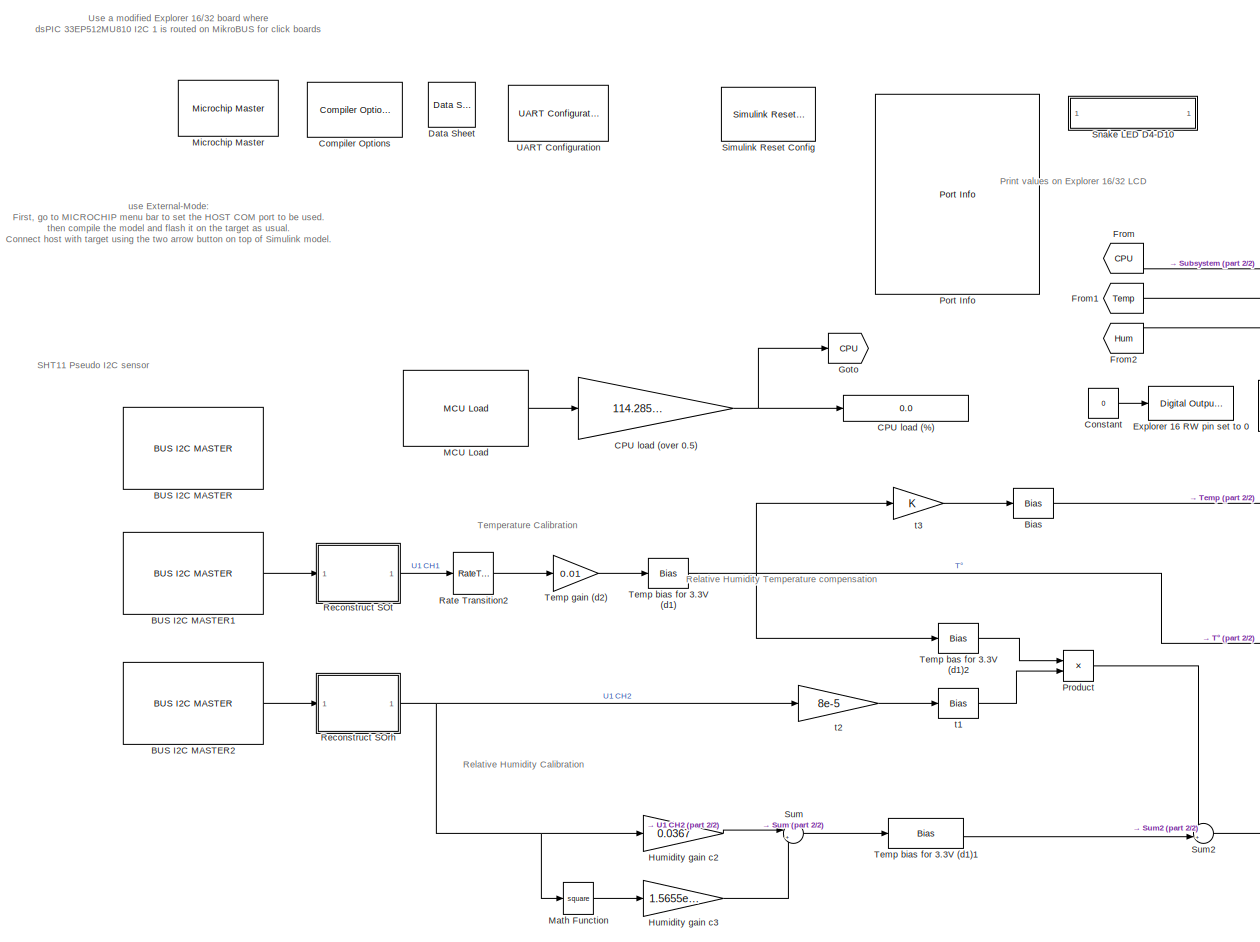
[diagram: root canvas - part 1/2, left side, full height]
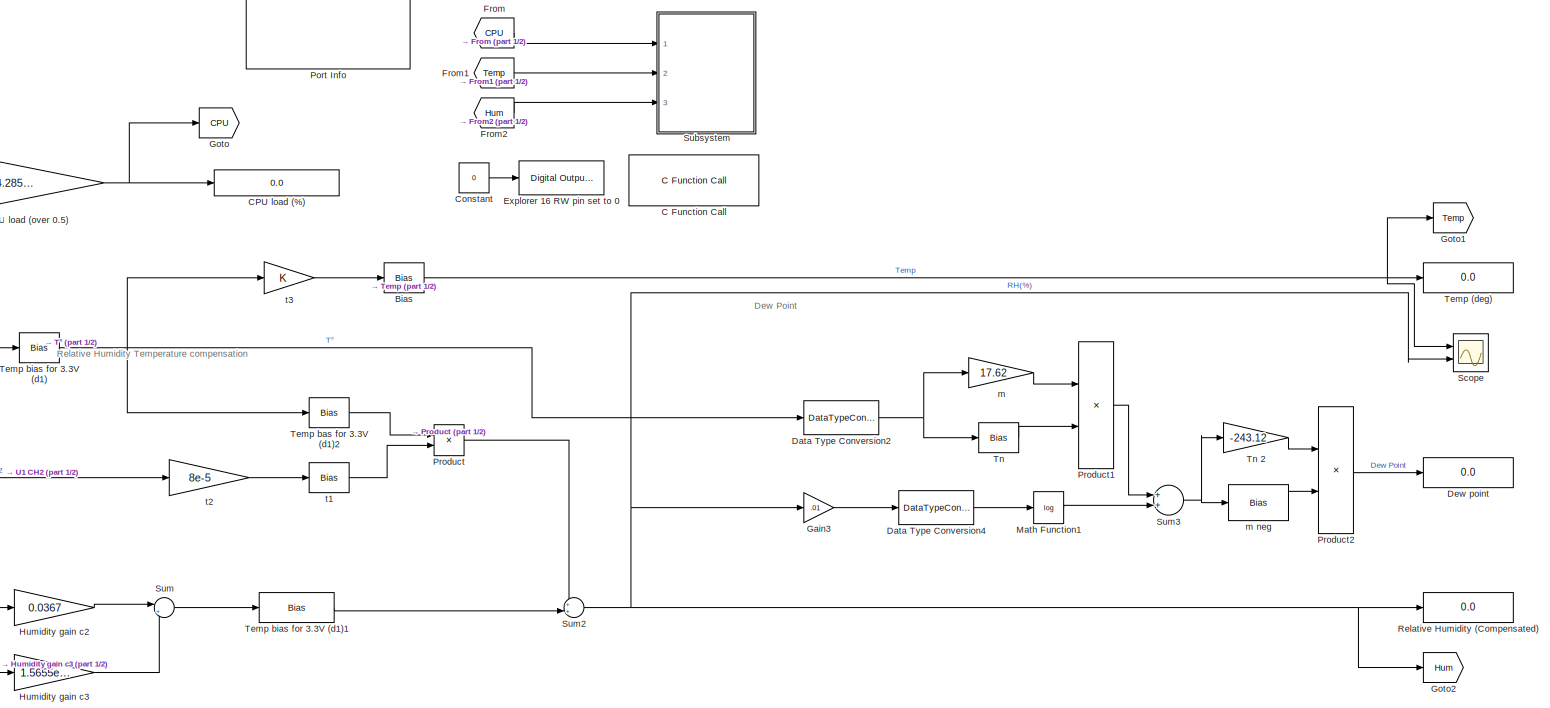
[diagram: root canvas - part 2/2, central region]
MODEL slx_b0462b158aa4
KIND model
CONFIG AbsTol = auto
CONFIG FixedStep = 0.01
CONFIG MaxStep = auto
CONFIG MinStep = auto
CONFIG RelTol = 1e-3
CONFIG SampleTimeConstraint = Unconstrained
CONFIG Solver = FixedStepDiscrete
CONFIG SolverMode = SingleTasking
CONFIG SolverName = FixedStepDiscrete
CONFIG StartTime = 0.0
CONFIG StopTime = inf
BLOCK [Reference] BUS I2C MASTER  REF=MCHP_Blockset/BUS I2C/BUS I2C
MASTER
  Ports = []
  SourceBlock = MCHP_Blockset/BUS I2C/BUS I2C\nMASTER
  SourceType = I2C Driver
BLOCK [Reference] BUS I2C MASTER1  REF=MCHP_Blockset/BUS I2C/BUS I2C
MASTER
  Ports = [0, 1]
  SourceBlock = MCHP_Blockset/BUS I2C/BUS I2C\nMASTER
  SourceType = I2C Driver
BLOCK [Reference] BUS I2C MASTER2  REF=MCHP_Blockset/BUS I2C/BUS I2C
MASTER
  Ports = [0, 1]
  SourceBlock = MCHP_Blockset/BUS I2C/BUS I2C\nMASTER
  SourceType = I2C Driver
BLOCK [Bias] Bias
  SaturateOnIntegerOverflow = off
BLOCK [Reference] C Function Call  REF=MCHP_Blockset/User Functions/C Function Call
  Ports = []
  SourceBlock = MCHP_Blockset/User Functions/C Function Call
  SourceType = C Function Call
  UserDataPersistent = on
BLOCK [Display] CPU load (%)
  Decimation = 1
  Format = long
  Ports = [1]
BLOCK [Gain] CPU load (over 0.5)
  Gain = 114.2857143e-9 / 0.5 * 100
  OutDataTypeStr = Inherit: Inherit via internal rule
  ParamDataTypeStr = Inherit: Inherit via internal rule
  SaturateOnIntegerOverflow = off
BLOCK [Reference] Compiler Options  REF=MCHP_Blockset/System Configuration/Compiler Options
  Ports = []
  Priority = 1
  SourceBlock = MCHP_Blockset/System Configuration/Compiler Options
BLOCK [Constant] Constant
  OutDataTypeStr = Inherit: Inherit via back propagation
  Value = 0
BLOCK [Reference] Data Sheet  REF=MCHP_Blockset/System Info/Data Sheet
  AttributesFormatString = %<cpy_MCHP_Id>
  Ports = []
  SourceBlock = MCHP_Blockset/System Info/Data Sheet
BLOCK [DataTypeConversion] Data Type Conversion2
  OutDataTypeStr = double
  RndMeth = Floor
  SaturateOnIntegerOverflow = off
BLOCK [DataTypeConversion] Data Type Conversion4
  OutDataTypeStr = double
  RndMeth = Floor
  SaturateOnIntegerOverflow = off
BLOCK [Display] Dew point
  Decimation = 1
  Format = long
  Ports = [1]
BLOCK [Reference] Explorer 16 RW pin set to 0  REF=MCHP_Blockset/Digital IO/Digital Output
Write
  Ports = [1]
  SourceBlock = MCHP_Blockset/Digital IO/Digital Output\nWrite
  SourceType = Output driver for Digital Output Pins
BLOCK [From] From
  GotoTag = CPU
BLOCK [From] From1
  GotoTag = Temp
BLOCK [From] From2
  GotoTag = Hum
BLOCK [Gain] Gain3
  Gain = .01
  OutDataTypeStr = fixdt(1,32)
  OutMax = [1]
  OutMin = [0]
  ParamDataTypeStr = Inherit: Inherit via internal rule
  SaturateOnIntegerOverflow = off
BLOCK [Goto] Goto
  GotoTag = CPU
BLOCK [Goto] Goto1
  GotoTag = Temp
BLOCK [Goto] Goto2
  GotoTag = Hum
BLOCK [Gain] Humidity gain c2
  Gain = 0.0367
  OutDataTypeStr = fixdt(1,32)
  OutMax = 2^16*0.0367
  ParamDataTypeStr = Inherit: Inherit via internal rule
  SaturateOnIntegerOverflow = off
BLOCK [Gain] Humidity gain c3
  Gain = 1.5655e-6
  OutDataTypeStr = fixdt(0,32)
  OutMax = 2^32*1.5655e-6
  ParamDataTypeStr = Inherit: Inherit via internal rule
  SaturateOnIntegerOverflow = off
BLOCK [Reference] MCU Load  REF=MCHP_Blockset/Profiling/MCU Load
  Ports = [0, 1]
  SourceBlock = MCHP_Blockset/Profiling/MCU Load
  SourceType = MCU Load (Profile execution time)
BLOCK [Math] Math Function
  Operator = square
  OutDataTypeStr = Inherit: Inherit via internal rule
  Ports = [1, 1]
  SaturateOnIntegerOverflow = off
BLOCK [Math] Math Function1
  Operator = log
  OutDataTypeStr = Inherit: Inherit via internal rule
  Ports = [1, 1]
  SaturateOnIntegerOverflow = off
BLOCK [Reference] Microchip Master  REF=MCHP_Blockset/System Configuration/Microchip Master
  Ports = []
  Priority = 1
  SourceBlock = MCHP_Blockset/System Configuration/Microchip Master
BLOCK [Reference] Port Info  REF=MCHP_Blockset/System Info/Port Info
  Ports = []
  SourceBlock = MCHP_Blockset/System Info/Port Info
BLOCK [Product] Product
  InputSameDT = off
  OutDataTypeStr = Inherit: Inherit via internal rule
  Ports = [2, 1]
  RndMeth = Floor
  SaturateOnIntegerOverflow = off
BLOCK [Product] Product1
  InputSameDT = off
  Inputs = */
  OutDataTypeStr = Inherit: Inherit via internal rule
  Ports = [2, 1]
  RndMeth = Floor
  SaturateOnIntegerOverflow = off
BLOCK [Product] Product2
  InputSameDT = off
  Inputs = */
  OutDataTypeStr = Inherit: Inherit via internal rule
  Ports = [2, 1]
  RndMeth = Floor
  SaturateOnIntegerOverflow = off
BLOCK [RateTransition] Rate Transition2
  Integrity = off
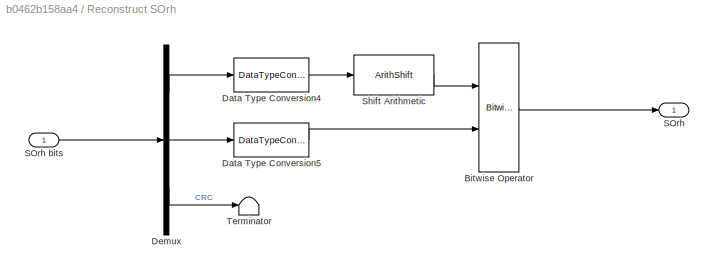
BLOCK [SubSystem] Reconstruct SOrh
  Ports = [1, 1]
  RequestExecContextInheritance = off
  Variant = off
BLOCK [Reference] Reconstruct SOrh/Bitwise Operator  REF=simulink/Logic and Bit
Operations/Bitwise
Operator
  Ports = [2, 1]
  SourceBlock = simulink/Logic and Bit\nOperations/Bitwise\nOperator
  SourceType = Bitwise Operator
BLOCK [DataTypeConversion] Reconstruct SOrh/Data Type Conversion4
  ConvertRealWorld = Stored Integer (SI)
  OutDataTypeStr = uint16
  RndMeth = Floor
  SaturateOnIntegerOverflow = off
BLOCK [DataTypeConversion] Reconstruct SOrh/Data Type Conversion5
  ConvertRealWorld = Stored Integer (SI)
  OutDataTypeStr = uint16
  RndMeth = Floor
  SaturateOnIntegerOverflow = off
BLOCK [Demux] Reconstruct SOrh/Demux
  DisplayOption = bar
  Outputs = 3
  Ports = [1, 3]
BLOCK [Outport] Reconstruct SOrh/SOrh
  IconDisplay = Port number
BLOCK [Inport] Reconstruct SOrh/SOrh bits
  IconDisplay = Port number
BLOCK [ArithShift] Reconstruct SOrh/Shift Arithmetic
  BitShiftDirection = Left
  BitShiftNumber = 8
  InputPortMap = u0
  Ports = [1, 1]
BLOCK [Terminator] Reconstruct SOrh/Terminator
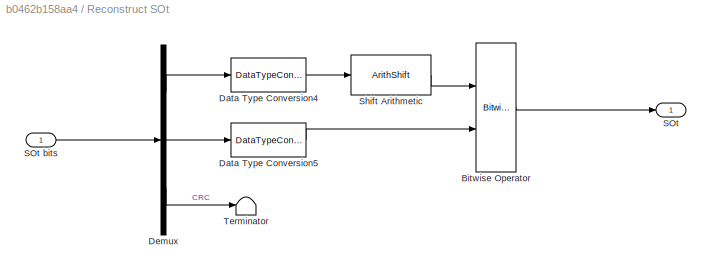
BLOCK [SubSystem] Reconstruct SOt
  Ports = [1, 1]
  RequestExecContextInheritance = off
  Variant = off
BLOCK [Reference] Reconstruct SOt/Bitwise Operator  REF=simulink/Logic and Bit
Operations/Bitwise
Operator
  Ports = [2, 1]
  SourceBlock = simulink/Logic and Bit\nOperations/Bitwise\nOperator
  SourceType = Bitwise Operator
BLOCK [DataTypeConversion] Reconstruct SOt/Data Type Conversion4
  ConvertRealWorld = Stored Integer (SI)
  OutDataTypeStr = uint16
  RndMeth = Floor
  SaturateOnIntegerOverflow = off
BLOCK [DataTypeConversion] Reconstruct SOt/Data Type Conversion5
  ConvertRealWorld = Stored Integer (SI)
  OutDataTypeStr = uint16
  RndMeth = Floor
  SaturateOnIntegerOverflow = off
BLOCK [Demux] Reconstruct SOt/Demux
  DisplayOption = bar
  Outputs = 3
  Ports = [1, 3]
BLOCK [Outport] Reconstruct SOt/SOt
  IconDisplay = Port number
BLOCK [Inport] Reconstruct SOt/SOt bits
  IconDisplay = Port number
BLOCK [ArithShift] Reconstruct SOt/Shift Arithmetic
  BitShiftDirection = Left
  BitShiftNumber = 8
  InputPortMap = u0
  Ports = [1, 1]
BLOCK [Terminator] Reconstruct SOt/Terminator
BLOCK [Display] Relative Humidity (Compensated)
  Decimation = 1
  Format = long
  Ports = [1]
BLOCK [Scope] Scope
  NumInputPorts = 2
  Ports = [2]
  ScopeSpecificationString = Simulink.scopes.TimeScopeBlockCfg('CurrentConfiguration', extmgr.ConfigurationSet(extmgr.Configuration('Core','General UI',true),extmgr.Configuration('Core','Source UI',true),extmgr.Configuration('Sources','WiredSimulink',true),extmgr.Configuration('Visuals','Time Domain',true,'SerializedDisplays',{struct('MinYLimReal','75.92188','MaxYLimReal','76.85938','YLabelReal','','MinYLimMag','75.92188','Ma...<+2170ch>
BLOCK [Reference] Simulink Reset Config  REF=MCHP_Blockset/System Configuration/Simulink Reset
Config
  Ports = []
  SourceBlock = MCHP_Blockset/System Configuration/Simulink Reset\nConfig
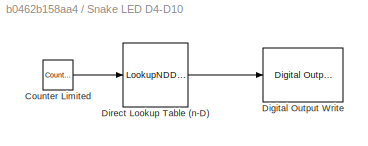
BLOCK [SubSystem] Snake LED D4-D10
  Ports = []
  RequestExecContextInheritance = off
  Variant = off
BLOCK [Reference] Snake LED D4-D10/Counter Limited   REF=simulink/Sources/Counter
Limited
  Ports = [0, 1]
  SourceBlock = simulink/Sources/Counter\nLimited
  SourceType = Counter Limited
BLOCK [Reference] Snake LED D4-D10/Digital Output Write  REF=MCHP_Blockset/Digital IO/Digital Output
Write
  Ports = [1]
  SourceBlock = MCHP_Blockset/Digital IO/Digital Output\nWrite
  SourceType = Output driver for Digital Output Pins
BLOCK [LookupNDDirect] Snake LED D4-D10/Direct Lookup Table (n-D)
  NumberOfTableDimensions = 1
  Ports = [1, 1]
  Table = [ 2 4 8 16 32 64 128 64 32 16 8 4 ]
  TableDataTypeStr = uint16
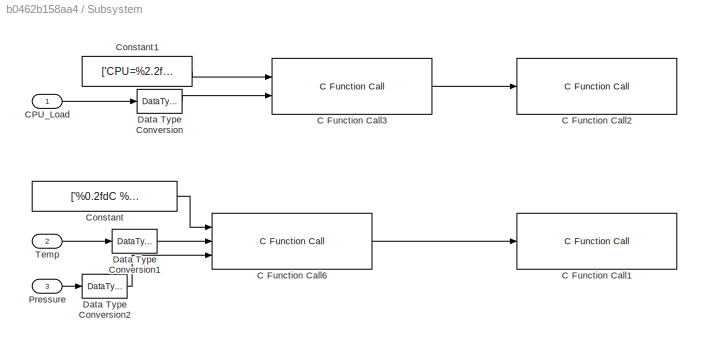
BLOCK [SubSystem] Subsystem
  Ports = [3]
  RequestExecContextInheritance = off
  Variant = off
BLOCK [Reference] Subsystem/C Function Call1  REF=MCHP_Blockset/User Functions/C Function Call
  Ports = [1]
  SourceBlock = MCHP_Blockset/User Functions/C Function Call
  SourceType = C Function Call
  UserDataPersistent = on
BLOCK [Reference] Subsystem/C Function Call2  REF=MCHP_Blockset/User Functions/C Function Call
  Ports = [1]
  SourceBlock = MCHP_Blockset/User Functions/C Function Call
  SourceType = C Function Call
  UserDataPersistent = on
BLOCK [Reference] Subsystem/C Function Call3  REF=MCHP_Blockset/User Functions/C Function Call
  Ports = [2, 1]
  SourceBlock = MCHP_Blockset/User Functions/C Function Call
  SourceType = C Function Call
  UserDataPersistent = on
BLOCK [Reference] Subsystem/C Function Call6  REF=MCHP_Blockset/User Functions/C Function Call
  Ports = [3, 1]
  SourceBlock = MCHP_Blockset/User Functions/C Function Call
  SourceType = C Function Call
  UserDataPersistent = on
BLOCK [Inport] Subsystem/CPU_Load
  IconDisplay = Port number
BLOCK [Constant] Subsystem/Constant
  OutDataTypeStr = int8
  Value = ['%0.2fdC %0.2f%%RH' 0]+0
BLOCK [Constant] Subsystem/Constant1
  OutDataTypeStr = int8
  Value = ['CPU=%2.2f%%' 0]+0
BLOCK [DataTypeConversion] Subsystem/Data Type Conversion
  RndMeth = Floor
  SaturateOnIntegerOverflow = off
BLOCK [DataTypeConversion] Subsystem/Data Type Conversion1
  RndMeth = Floor
  SaturateOnIntegerOverflow = off
BLOCK [DataTypeConversion] Subsystem/Data Type Conversion2
  RndMeth = Floor
  SaturateOnIntegerOverflow = off
BLOCK [Inport] Subsystem/Pressure
  IconDisplay = Port number
  Port = 3
BLOCK [Inport] Subsystem/Temp
  IconDisplay = Port number
  Port = 2
BLOCK [Sum] Sum
  IconShape = round
  InputSameDT = off
  Inputs = |+-
  OutDataTypeStr = Inherit: Inherit via internal rule
  Ports = [2, 1]
  SaturateOnIntegerOverflow = off
BLOCK [Sum] Sum2
  IconShape = round
  InputSameDT = off
  Inputs = ++|
  OutDataTypeStr = Inherit: Inherit via internal rule
  Ports = [2, 1]
  SaturateOnIntegerOverflow = off
BLOCK [Sum] Sum3
  InputSameDT = off
  OutDataTypeStr = Inherit: Inherit via internal rule
  Ports = [2, 1]
  SaturateOnIntegerOverflow = off
BLOCK [Display] Temp (deg)
  Decimation = 1
  Format = long
  Ports = [1]
BLOCK [Bias] Temp bas for 3.3V (d1)2
  Bias = -25
  SaturateOnIntegerOverflow = off
BLOCK [Bias] Temp bias for 3.3V (d1)
  Bias = -39.7
  SaturateOnIntegerOverflow = off
BLOCK [Bias] Temp bias for 3.3V (d1)1
  Bias = -2.0468
  SaturateOnIntegerOverflow = off
BLOCK [Gain] Temp gain (d2)
  Gain = 0.01
  OutDataTypeStr = fixdt(1,16)
  OutMax = 655.35
  OutMin = 0
  ParamDataTypeStr = Inherit: Inherit via internal rule
  SaturateOnIntegerOverflow = off
BLOCK [Bias] Tn
  Bias = 243.12
  SaturateOnIntegerOverflow = off
BLOCK [Gain] Tn 2
  Gain = -243.12
  OutDataTypeStr = Inherit: Inherit via internal rule
  ParamDataTypeStr = Inherit: Inherit via internal rule
  SaturateOnIntegerOverflow = off
BLOCK [Reference] UART Configuration  REF=MCHP_Blockset/BUS UART/UART Configuration
  Ports = []
  SourceBlock = MCHP_Blockset/BUS UART/UART Configuration
  SourceType = Configuration for UART peripheral
BLOCK [Gain] m
  Gain = 17.62
  OutDataTypeStr = Inherit: Inherit via internal rule
  ParamDataTypeStr = Inherit: Inherit via internal rule
  SaturateOnIntegerOverflow = off
BLOCK [Bias] m neg
  Bias = -17.62
  SaturateOnIntegerOverflow = off
BLOCK [Bias] t1
  Bias = 0.01
  SaturateOnIntegerOverflow = off
BLOCK [Gain] t2
  Gain = 8e-5
  OutDataTypeStr = fixdt(0,16)
  OutMax = 2^16*8e-5
  ParamDataTypeStr = Inherit: Inherit via internal rule
  SaturateOnIntegerOverflow = off
BLOCK [Gain] t3
  ParamDataTypeStr = fixdt(0,16,13)
  SaturateOnIntegerOverflow = off
ANNOTATION (root): Use a modified Explorer 16/32 board where dsPIC 33EP512MU810 I2C 1 is routed on MikroBUS for click boards
ANNOTATION (root): use External-Mode: First, go to MICROCHIP menu bar to set the HOST COM port to be used. then compile the model and flash it on the target as usual. Connect host with target using the two arrow button on top of Simulink model.
ANNOTATION (root): Dew Point
ANNOTATION (root): Print values on Explorer 16/32 LCD
ANNOTATION (root): Relative Humidity Calibration
ANNOTATION (root): Relative Humidity Temperature compensation
ANNOTATION (root): SHT11 Pseudo I2C sensor
ANNOTATION (root): Temperature Calibration
LINE BUS I2C MASTER1:1 -> Reconstruct SOt:1
LINE BUS I2C MASTER2:1 -> Reconstruct SOrh:1
NET Bias:1 -> Goto1:1, Scope:1, Temp (deg):1
NET CPU load (over 0.5):1 -> CPU load (%):1, Goto:1
LINE Constant:1 -> Explorer 16 RW pin set to 0:1
NET Data Type Conversion2:1 -> Tn:1, m:1
LINE Data Type Conversion4:1 -> Math Function1:1
LINE From1:1 -> Subsystem:2
LINE From2:1 -> Subsystem:3
LINE From:1 -> Subsystem:1
LINE Gain3:1 -> Data Type Conversion4:1
LINE Humidity gain c2:1 -> Sum:1
LINE Humidity gain c3:1 -> Sum:2
LINE MCU Load:1 -> CPU load (over 0.5):1
LINE Math Function1:1 -> Sum3:2
LINE Math Function:1 -> Humidity gain c3:1
LINE Product1:1 -> Sum3:1
LINE Product2:1 -> Dew point:1
LINE Product:1 -> Sum2:1
LINE Rate Transition2:1 -> Temp gain (d2):1
LINE Reconstruct SOrh/Bitwise Operator:1 -> Reconstruct SOrh/SOrh:1
LINE Reconstruct SOrh/Data Type Conversion4:1 -> Reconstruct SOrh/Shift Arithmetic:1
LINE Reconstruct SOrh/Data Type Conversion5:1 -> Reconstruct SOrh/Bitwise Operator:2
LINE Reconstruct SOrh/Demux:1 -> Reconstruct SOrh/Data Type Conversion4:1
LINE Reconstruct SOrh/Demux:2 -> Reconstruct SOrh/Data Type Conversion5:1
LINE Reconstruct SOrh/Demux:3 -> Reconstruct SOrh/Terminator:1
LINE Reconstruct SOrh/SOrh bits:1 -> Reconstruct SOrh/Demux:1
LINE Reconstruct SOrh/Shift Arithmetic:1 -> Reconstruct SOrh/Bitwise Operator:1
NET Reconstruct SOrh:1 -> Humidity gain c2:1, Math Function:1, t2:1
LINE Reconstruct SOt/Bitwise Operator:1 -> Reconstruct SOt/SOt:1
LINE Reconstruct SOt/Data Type Conversion4:1 -> Reconstruct SOt/Shift Arithmetic:1
LINE Reconstruct SOt/Data Type Conversion5:1 -> Reconstruct SOt/Bitwise Operator:2
LINE Reconstruct SOt/Demux:1 -> Reconstruct SOt/Data Type Conversion4:1
LINE Reconstruct SOt/Demux:2 -> Reconstruct SOt/Data Type Conversion5:1
LINE Reconstruct SOt/Demux:3 -> Reconstruct SOt/Terminator:1
LINE Reconstruct SOt/SOt bits:1 -> Reconstruct SOt/Demux:1
LINE Reconstruct SOt/Shift Arithmetic:1 -> Reconstruct SOt/Bitwise Operator:1
LINE Reconstruct SOt:1 -> Rate Transition2:1
LINE Snake LED D4-D10/Counter Limited :1 -> Snake LED D4-D10/Direct Lookup Table (n-D):1
LINE Snake LED D4-D10/Direct Lookup Table (n-D):1 -> Snake LED D4-D10/Digital Output Write:1
LINE Subsystem/C Function Call3:1 -> Subsystem/C Function Call2:1
LINE Subsystem/C Function Call6:1 -> Subsystem/C Function Call1:1
LINE Subsystem/CPU_Load:1 -> Subsystem/Data Type Conversion:1
LINE Subsystem/Constant1:1 -> Subsystem/C Function Call3:1
LINE Subsystem/Constant:1 -> Subsystem/C Function Call6:1
LINE Subsystem/Data Type Conversion1:1 -> Subsystem/C Function Call6:2
LINE Subsystem/Data Type Conversion2:1 -> Subsystem/C Function Call6:3
LINE Subsystem/Data Type Conversion:1 -> Subsystem/C Function Call3:2
LINE Subsystem/Pressure:1 -> Subsystem/Data Type Conversion2:1
LINE Subsystem/Temp:1 -> Subsystem/Data Type Conversion1:1
NET Sum2:1 -> Gain3:1, Goto2:1, Relative Humidity (Compensated):1, Scope:2
NET Sum3:1 -> Tn 2:1, m neg:1
LINE Sum:1 -> Temp bias for 3.3V (d1)1:1
LINE Temp bas for 3.3V (d1)2:1 -> Product:1
LINE Temp bias for 3.3V (d1)1:1 -> Sum2:2
NET Temp bias for 3.3V (d1):1 -> Data Type Conversion2:1, Temp bas for 3.3V (d1)2:1, t3:1
LINE Temp gain (d2):1 -> Temp bias for 3.3V (d1):1
LINE Tn 2:1 -> Product2:1
LINE Tn:1 -> Product1:2
LINE m neg:1 -> Product2:2
LINE m:1 -> Product1:1
LINE t1:1 -> Product:2
LINE t2:1 -> t1:1
LINE t3:1 -> Bias:1
note: NET lines group one-source signal fan-out (src -> all destinations, sorted); 1:1 wires keep LINE
